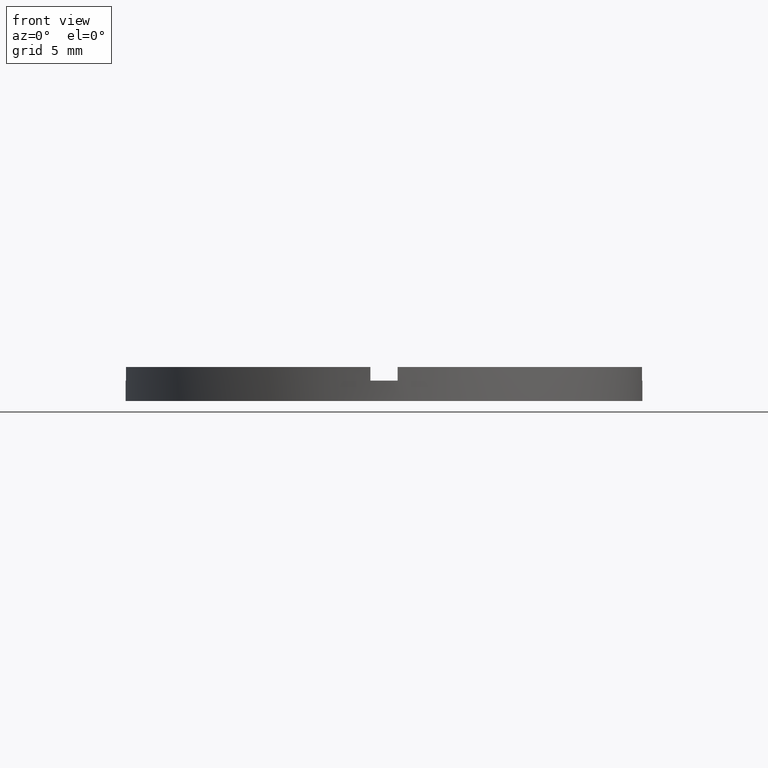
[diagram: clean part render]
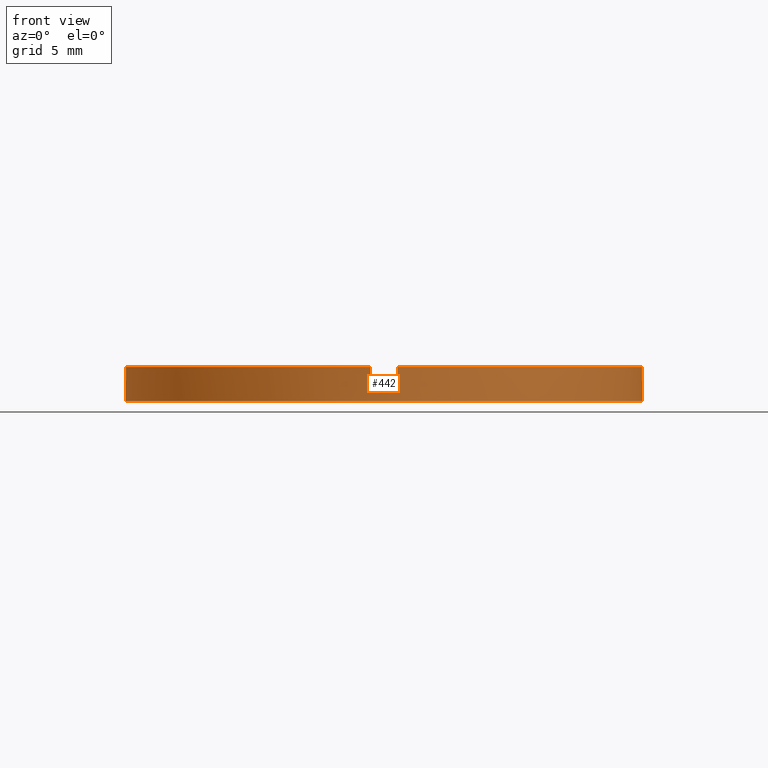
[diagram: same view with one face highlighted and labeled with its STEP entity id]
A machine part, front view. The second image highlights one B-rep face of the part: STEP entity #442.
In plain terms, the highlighted cylindrical surface (partial cylindrical patch) has radius 19 mm, axis along (-0, -0, -1).
Its self-contained STEP definition (entity closure, byte-faithful):
#5 = EDGE_CURVE ( 'NONE', #445, #578, #621, .T. ) ;
#15 = ORIENTED_EDGE ( 'NONE', *, *, #662, .F. ) ;
#21 = VERTEX_POINT ( 'NONE', #743 ) ;
#24 = LINE ( 'NONE', #218, #540 ) ;
#31 = CARTESIAN_POINT ( 'NONE',  ( -1.000000000000161648, -18.97366596101026204, 2.500000000000000000 ) ) ;
#34 = VECTOR ( 'NONE', #83, 1000.000000000000000 ) ;
#35 = VERTEX_POINT ( 'NONE', #448 ) ;
#41 = CIRCLE ( 'NONE', #292, 19.00000000000000000 ) ;
#54 = DIRECTION ( 'NONE',  ( -1.000000000000000000, 0.000000000000000000, 0.000000000000000000 ) ) ;
#58 = CARTESIAN_POINT ( 'NONE',  ( -18.97366596101027625, -1.000000000000024203, 2.500000000000000000 ) ) ;
#68 = CARTESIAN_POINT ( 'NONE',  ( 18.97366596101026914, -1.000000000000158540, 2.500000000000000000 ) ) ;
#69 = CIRCLE ( 'NONE', #765, 19.00000000000000000 ) ;
#72 = VECTOR ( 'NONE', #212, 1000.000000000000000 ) ;
#83 = DIRECTION ( 'NONE',  ( -0.000000000000000000, -0.000000000000000000, -1.000000000000000000 ) ) ;
#91 = CARTESIAN_POINT ( 'NONE',  ( 0.000000000000000000, 0.000000000000000000, 2.500000000000000000 ) ) ;
#103 = EDGE_CURVE ( 'NONE', #445, #21, #625, .T. ) ;
#113 = DIRECTION ( 'NONE',  ( -0.000000000000000000, 0.000000000000000000, 1.000000000000000000 ) ) ;
#120 = VECTOR ( 'NONE', #175, 1000.000000000000000 ) ;
#121 = DIRECTION ( 'NONE',  ( 1.000000000000000000, 0.000000000000000000, 0.000000000000000000 ) ) ;
#139 = AXIS2_PLACEMENT_3D ( 'NONE', #91, #273, #522 ) ;
#140 = CARTESIAN_POINT ( 'NONE',  ( -1.000000000000162093, -18.97366596101026559, 2.500000000000000000 ) ) ;
#167 = DIRECTION ( 'NONE',  ( -0.000000000000000000, -0.000000000000000000, -1.000000000000000000 ) ) ;
#171 = CARTESIAN_POINT ( 'NONE',  ( 19.00000000000000000, 2.326828918379970970E-15, 1.500000000000000000 ) ) ;
#173 = EDGE_CURVE ( 'NONE', #196, #537, #366, .T. ) ;
#175 = DIRECTION ( 'NONE',  ( 0.000000000000000000, 0.000000000000000000, 1.000000000000000000 ) ) ;
#184 = VERTEX_POINT ( 'NONE', #171 ) ;
#185 = CARTESIAN_POINT ( 'NONE',  ( 19.00000000000000000, 2.326828918379970970E-15, 0.000000000000000000 ) ) ;
#191 = DIRECTION ( 'NONE',  ( 0.000000000000000000, 0.000000000000000000, 1.000000000000000000 ) ) ;
#193 = EDGE_CURVE ( 'NONE', #35, #225, #622, .T. ) ;
#196 = VERTEX_POINT ( 'NONE', #251 ) ;
#198 = EDGE_LOOP ( 'NONE', ( #294, #483, #199, #499, #278, #744, #501, #15, #753, #287, #534, #739 ) ) ;
#199 = ORIENTED_EDGE ( 'NONE', *, *, #193, .T. ) ;
#209 = AXIS2_PLACEMENT_3D ( 'NONE', #263, #248, #498 ) ;
#212 = DIRECTION ( 'NONE',  ( -0.000000000000000000, -0.000000000000000000, -1.000000000000000000 ) ) ;
#218 = CARTESIAN_POINT ( 'NONE',  ( -19.00000000000000000, 0.000000000000000000, 2.500000000000000000 ) ) ;
#225 = VERTEX_POINT ( 'NONE', #383 ) ;
#247 = DIRECTION ( 'NONE',  ( 1.000000000000000000, 0.000000000000000000, 0.000000000000000000 ) ) ;
#248 = DIRECTION ( 'NONE',  ( 0.000000000000000000, 0.000000000000000000, 1.000000000000000000 ) ) ;
#251 = CARTESIAN_POINT ( 'NONE',  ( -19.00000000000000000, 0.000000000000000000, 1.500000000000000000 ) ) ;
#263 = CARTESIAN_POINT ( 'NONE',  ( 0.000000000000000000, 0.000000000000000000, 2.500000000000000000 ) ) ;
#273 = DIRECTION ( 'NONE',  ( 0.000000000000000000, 0.000000000000000000, 1.000000000000000000 ) ) ;
#274 = DIRECTION ( 'NONE',  ( -0.000000000000000000, -0.000000000000000000, -1.000000000000000000 ) ) ;
#278 = ORIENTED_EDGE ( 'NONE', *, *, #452, .T. ) ;
#286 = DIRECTION ( 'NONE',  ( 1.000000000000000000, 0.000000000000000000, 0.000000000000000000 ) ) ;
#287 = ORIENTED_EDGE ( 'NONE', *, *, #173, .F. ) ;
#289 = LINE ( 'NONE', #406, #34 ) ;
#292 = AXIS2_PLACEMENT_3D ( 'NONE', #513, #638, #698 ) ;
#294 = ORIENTED_EDGE ( 'NONE', *, *, #520, .F. ) ;
#331 = CARTESIAN_POINT ( 'NONE',  ( -18.97366596101027625, -1.000000000000024203, 2.500000000000000000 ) ) ;
#332 = LINE ( 'NONE', #58, #72 ) ;
#340 = CYLINDRICAL_SURFACE ( 'NONE', #751, 19.00000000000000000 ) ;
#342 = CIRCLE ( 'NONE', #139, 19.00000000000000000 ) ;
#366 = CIRCLE ( 'NONE', #434, 19.00000000000000000 ) ;
#381 = VECTOR ( 'NONE', #191, 1000.000000000000000 ) ;
#383 = CARTESIAN_POINT ( 'NONE',  ( 18.97366596101026914, -1.000000000000158540, 2.500000000000000000 ) ) ;
#387 = AXIS2_PLACEMENT_3D ( 'NONE', #430, #113, #247 ) ;
#406 = CARTESIAN_POINT ( 'NONE',  ( 19.00000000000000000, 2.326828918379970970E-15, 2.500000000000000000 ) ) ;
#412 = EDGE_CURVE ( 'NONE', #441, #225, #342, .T. ) ;
#415 = CARTESIAN_POINT ( 'NONE',  ( -1.000000000000161648, -18.97366596101026204, 1.500000000000000000 ) ) ;
#427 = CARTESIAN_POINT ( 'NONE',  ( 0.000000000000000000, 0.000000000000000000, 1.500000000000000000 ) ) ;
#430 = CARTESIAN_POINT ( 'NONE',  ( 0.000000000000000000, 0.000000000000000000, 1.500000000000000000 ) ) ;
#434 = AXIS2_PLACEMENT_3D ( 'NONE', #427, #531, #121 ) ;
#441 = VERTEX_POINT ( 'NONE', #466 ) ;
#442 = ADVANCED_FACE ( 'NONE', ( #596 ), #340, .T. ) ;
#445 = VERTEX_POINT ( 'NONE', #415 ) ;
#448 = CARTESIAN_POINT ( 'NONE',  ( 18.97366596101026914, -1.000000000000158540, 1.500000000000000000 ) ) ;
#452 = EDGE_CURVE ( 'NONE', #441, #21, #598, .T. ) ;
#466 = CARTESIAN_POINT ( 'NONE',  ( 0.9999999999998375744, -18.97366596101028335, 2.500000000000000000 ) ) ;
#483 = ORIENTED_EDGE ( 'NONE', *, *, #701, .F. ) ;
#498 = DIRECTION ( 'NONE',  ( 1.000000000000000000, 0.000000000000000000, 0.000000000000000000 ) ) ;
#499 = ORIENTED_EDGE ( 'NONE', *, *, #412, .F. ) ;
#501 = ORIENTED_EDGE ( 'NONE', *, *, #5, .T. ) ;
#513 = CARTESIAN_POINT ( 'NONE',  ( 0.000000000000000000, 0.000000000000000000, 0.000000000000000000 ) ) ;
#517 = EDGE_CURVE ( 'NONE', #196, #730, #24, .T. ) ;
#520 = EDGE_CURVE ( 'NONE', #184, #576, #289, .T. ) ;
#522 = DIRECTION ( 'NONE',  ( 1.000000000000000000, 0.000000000000000000, 0.000000000000000000 ) ) ;
#526 = VERTEX_POINT ( 'NONE', #331 ) ;
#527 = CARTESIAN_POINT ( 'NONE',  ( -19.00000000000000000, 0.000000000000000000, 0.000000000000000000 ) ) ;
#531 = DIRECTION ( 'NONE',  ( 0.000000000000000000, 0.000000000000000000, 1.000000000000000000 ) ) ;
#534 = ORIENTED_EDGE ( 'NONE', *, *, #517, .T. ) ;
#537 = VERTEX_POINT ( 'NONE', #580 ) ;
#540 = VECTOR ( 'NONE', #274, 1000.000000000000000 ) ;
#556 = CIRCLE ( 'NONE', #209, 19.00000000000000000 ) ;
#576 = VERTEX_POINT ( 'NONE', #185 ) ;
#578 = VERTEX_POINT ( 'NONE', #31 ) ;
#580 = CARTESIAN_POINT ( 'NONE',  ( -18.97366596101027625, -1.000000000000024203, 1.500000000000000000 ) ) ;
#593 = CARTESIAN_POINT ( 'NONE',  ( 0.000000000000000000, 0.000000000000000000, 2.500000000000000000 ) ) ;
#596 = FACE_OUTER_BOUND ( 'NONE', #198, .T. ) ;
#598 = LINE ( 'NONE', #779, #600 ) ;
#600 = VECTOR ( 'NONE', #167, 1000.000000000000000 ) ;
#621 = LINE ( 'NONE', #140, #381 ) ;
#622 = LINE ( 'NONE', #68, #120 ) ;
#625 = CIRCLE ( 'NONE', #387, 19.00000000000000000 ) ;
#638 = DIRECTION ( 'NONE',  ( 0.000000000000000000, 0.000000000000000000, 1.000000000000000000 ) ) ;
#654 = CARTESIAN_POINT ( 'NONE',  ( 0.000000000000000000, 0.000000000000000000, 1.500000000000000000 ) ) ;
#662 = EDGE_CURVE ( 'NONE', #526, #578, #556, .T. ) ;
#685 = EDGE_CURVE ( 'NONE', #730, #576, #41, .T. ) ;
#698 = DIRECTION ( 'NONE',  ( 1.000000000000000000, 0.000000000000000000, 0.000000000000000000 ) ) ;
#701 = EDGE_CURVE ( 'NONE', #35, #184, #69, .T. ) ;
#705 = DIRECTION ( 'NONE',  ( 0.000000000000000000, 0.000000000000000000, 1.000000000000000000 ) ) ;
#710 = DIRECTION ( 'NONE',  ( -0.000000000000000000, -0.000000000000000000, -1.000000000000000000 ) ) ;
#730 = VERTEX_POINT ( 'NONE', #527 ) ;
#739 = ORIENTED_EDGE ( 'NONE', *, *, #685, .T. ) ;
#743 = CARTESIAN_POINT ( 'NONE',  ( 0.9999999999998375744, -18.97366596101028335, 1.500000000000000000 ) ) ;
#744 = ORIENTED_EDGE ( 'NONE', *, *, #103, .F. ) ;
#751 = AXIS2_PLACEMENT_3D ( 'NONE', #593, #710, #54 ) ;
#753 = ORIENTED_EDGE ( 'NONE', *, *, #783, .T. ) ;
#765 = AXIS2_PLACEMENT_3D ( 'NONE', #654, #705, #286 ) ;
#779 = CARTESIAN_POINT ( 'NONE',  ( 0.9999999999998380185, -18.97366596101028691, 2.500000000000000000 ) ) ;
#783 = EDGE_CURVE ( 'NONE', #526, #537, #332, .T. ) ;